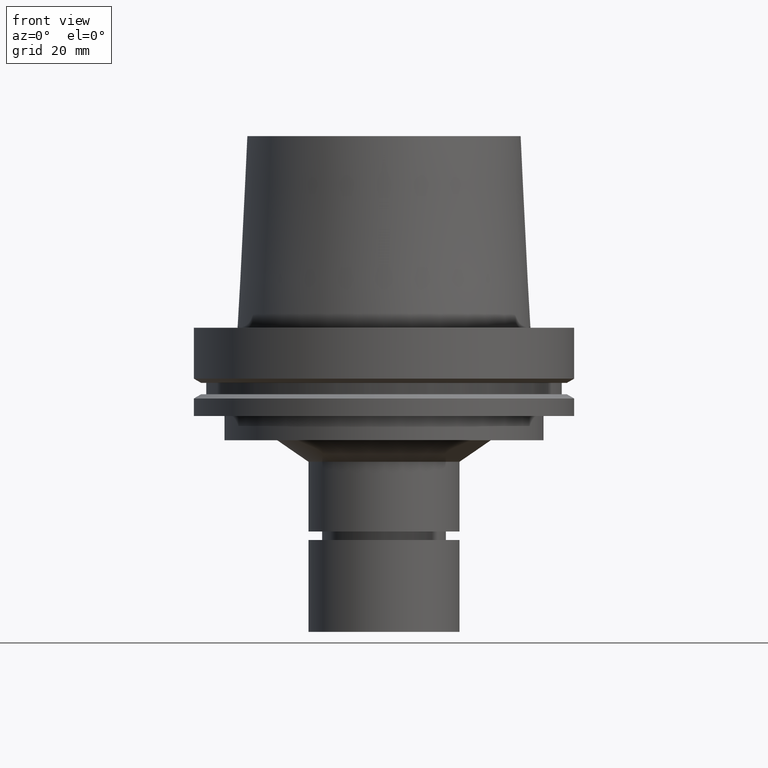
[diagram: clean part render]
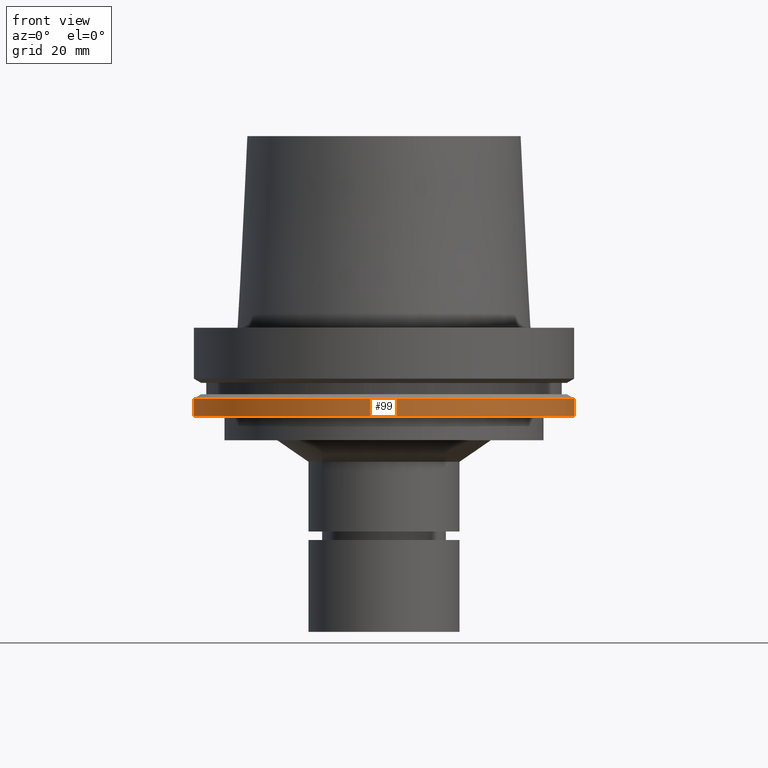
[diagram: same view with one face highlighted and labeled with its STEP entity id]
A machine part, front view. The second image highlights one B-rep face of the part: STEP entity #99.
In plain terms, the highlighted cylindrical surface (bore or boss wall) has radius 62.5 mm, axis along (0, -0, -1).
Its self-contained STEP definition (entity closure, byte-faithful):
#99=ADVANCED_FACE('Unnamed[1]',(#246,#247),#248,.T.);
#142=EDGE_CURVE('Unnamed[1]',#314,#314,#315,.T.);
#194=EDGE_CURVE('Unnamed[1]',#396,#396,#397,.T.);
#246=FACE_BOUND('',#451,.T.);
#247=FACE_BOUND('',#452,.T.);
#248=CYLINDRICAL_SURFACE('',#453,62.5);
#314=VERTEX_POINT('',#535);
#315=CIRCLE('',#536,62.5);
#396=VERTEX_POINT('',#638);
#397=CIRCLE('',#639,62.5);
#451=EDGE_LOOP('',(#676));
#452=EDGE_LOOP('',(#677));
#453=AXIS2_PLACEMENT_3D('',#678,#679,#680);
#535=CARTESIAN_POINT('',(1.77573785876366E-015,62.5,-29.0));
#536=AXIS2_PLACEMENT_3D('',#756,#757,#758);
#638=CARTESIAN_POINT('',(1.42350465640827E-015,62.5,-23.2475952641916));
#639=AXIS2_PLACEMENT_3D('',#848,#849,#850);
#676=ORIENTED_EDGE('',*,*,#142,.F.);
#677=ORIENTED_EDGE('',*,*,#194,.T.);
#678=CARTESIAN_POINT('',(1.59962125758596E-015,-4.09714989485071E-014,-26.1237976320957));
#679=DIRECTION('',(6.12323399573677E-017,-1.01046214935351E-015,-1.0));
#680=DIRECTION('',(5.70458091124975E-032,1.0,-1.01046214935351E-015));
#756=CARTESIAN_POINT('',(1.77573785876366E-015,-4.38777925751554E-014,-29.0));
#757=DIRECTION('',(6.12323399573676E-017,-1.01046214935351E-015,-1.0));
#758=DIRECTION('',(5.70458091124975E-032,1.0,-1.01046214935351E-015));
#848=CARTESIAN_POINT('',(1.42350465640827E-015,-3.80652053218589E-014,-23.2475952641915));
#849=DIRECTION('',(6.12323399573677E-017,-1.01046214935351E-015,-1.0));
#850=DIRECTION('',(5.70458091124975E-032,1.0,-1.01046214935351E-015));